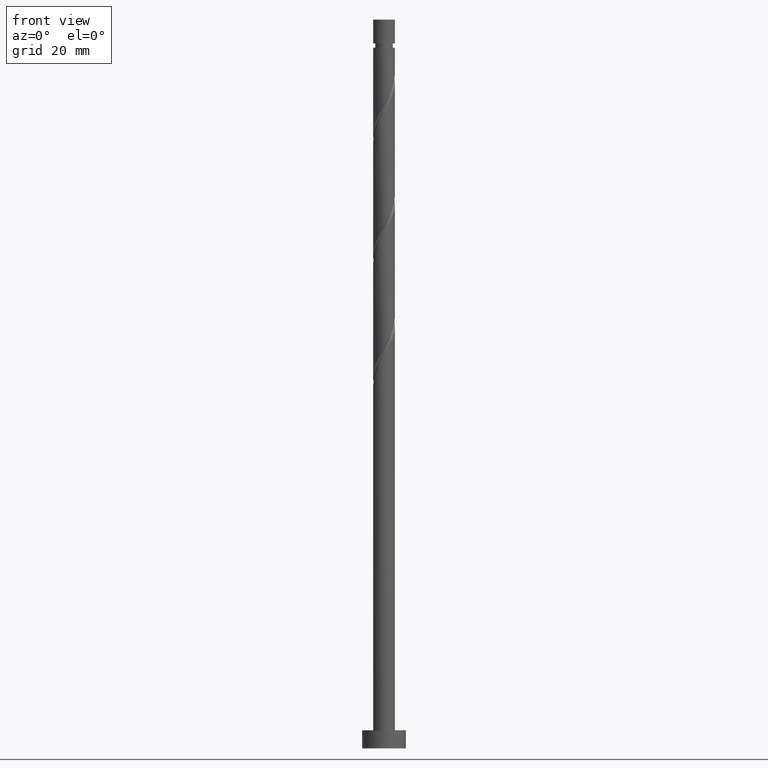
[diagram: clean part render]
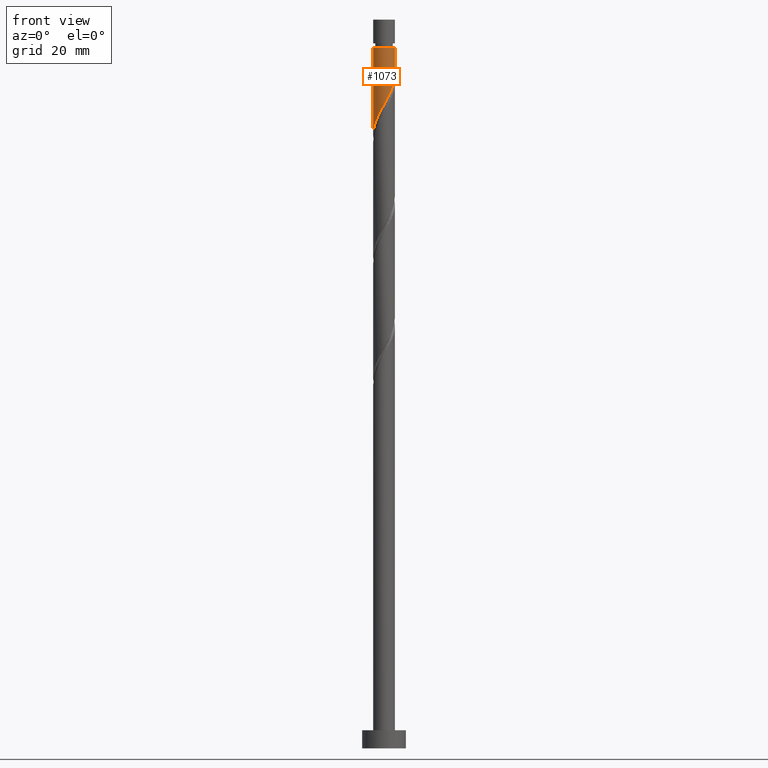
[diagram: same view with one face highlighted and labeled with its STEP entity id]
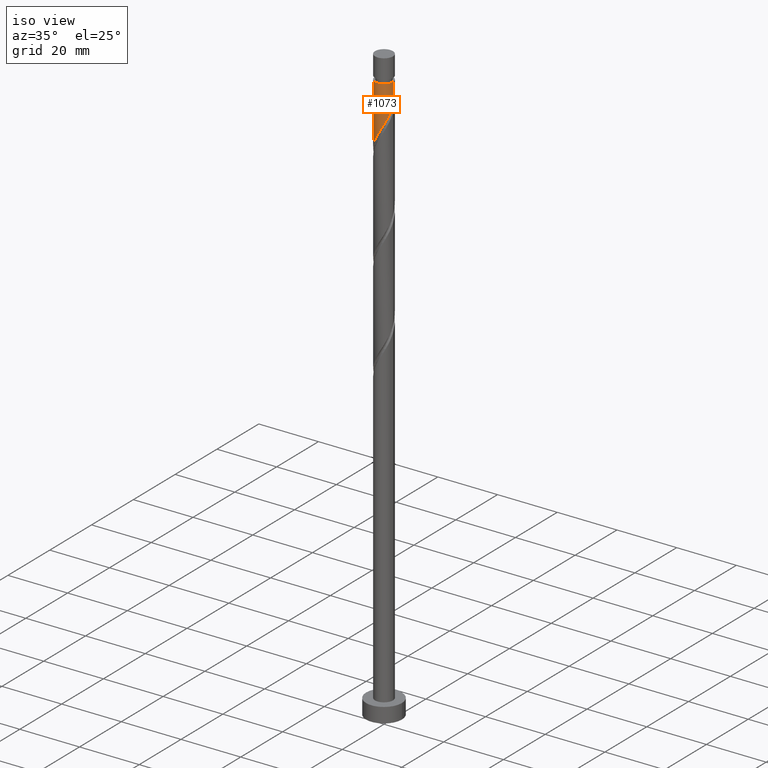
[diagram: same view with one face highlighted and labeled with its STEP entity id]
A machine part, front view. The second image highlights one B-rep face of the part: STEP entity #1073.
A second angle (iso view) of the same face is appended — the face is thin or edge-on in the first view.
In plain terms, the highlighted cylindrical surface (edge-blend (fillet) strip) has radius 3 mm, axis along (-0, -0, -1).
Its self-contained STEP definition (entity closure, byte-faithful):
#19 = CARTESIAN_POINT ( 'NONE',  ( 1.327489493864649095, -2.719147488601523222, 179.0673711523288318 ) ) ;
#127 = CARTESIAN_POINT ( 'NONE',  ( -1.691106054833251493, -2.509213369244494896, 173.5118155967732321 ) ) ;
#198 = LINE ( 'NONE', #754, #1691 ) ;
#210 = ORIENTED_EDGE ( 'NONE', *, *, #1384, .T. ) ;
#254 = CARTESIAN_POINT ( 'NONE',  ( -2.719147488601523222, -1.327489493864649095, 170.7340378189954606 ) ) ;
#278 = VERTEX_POINT ( 'NONE', #1052 ) ;
#341 = CARTESIAN_POINT ( 'NONE',  ( -3.000000000000000444, 1.315933031038566851E-15, 168.3253822519832852 ) ) ;
#378 = FACE_OUTER_BOUND ( 'NONE', #428, .T. ) ;
#428 = EDGE_LOOP ( 'NONE', ( #1619, #210, #1053, #1715 ) ) ;
#438 = CIRCLE ( 'NONE', #1605, 2.999999999999989342 ) ;
#443 = CARTESIAN_POINT ( 'NONE',  ( 2.861404451302099083, -0.9840508051709180304, 183.2340378189954322 ) ) ;
#465 = CARTESIAN_POINT ( 'NONE',  ( 3.000000000000000444, 2.093529822106810380E-15, 184.9920489186499424 ) ) ;
#474 = EDGE_CURVE ( 'NONE', #659, #1037, #900, .T. ) ;
#491 = LINE ( 'NONE', #1418, #1740 ) ;
#510 = CARTESIAN_POINT ( 'NONE',  ( -1.987010638188423162, -2.247618455994264242, 172.8173711523287466 ) ) ;
#519 = CARTESIAN_POINT ( 'NONE',  ( -2.282915221543594164, -1.986023542744032921, 172.1229267078842895 ) ) ;
#561 = CARTESIAN_POINT ( 'NONE',  ( 0.9529893618115767850, -2.844610918258235532, 178.3729267078842611 ) ) ;
#572 = CARTESIAN_POINT ( 'NONE',  ( 0.5784892297585039200, -2.970074347914949175, 177.6784822634398893 ) ) ;
#598 = CARTESIAN_POINT ( 'NONE',  ( 3.000000000000001776, -0.3015113445777606871, 184.4586225494607277 ) ) ;
#611 = DIRECTION ( 'NONE',  ( -0.000000000000000000, -0.000000000000000000, -1.000000000000000000 ) ) ;
#616 = DIRECTION ( 'NONE',  ( -0.000000000000000000, -0.000000000000000000, -1.000000000000000000 ) ) ;
#623 = EDGE_CURVE ( 'NONE', #1574, #1037, #491, .T. ) ;
#635 = CARTESIAN_POINT ( 'NONE',  ( -1.337578430002084096, -2.685308910273296767, 174.2062600412176607 ) ) ;
#659 = VERTEX_POINT ( 'NONE', #465 ) ;
#754 = CARTESIAN_POINT ( 'NONE',  ( 3.000000000000000444, 3.673940397442060361E-16, 200.0000000000000000 ) ) ;
#798 = DIRECTION ( 'NONE',  ( -0.000000000000000000, -0.000000000000000000, -1.000000000000000000 ) ) ;
#804 = CARTESIAN_POINT ( 'NONE',  ( -3.000000000000000444, 1.315933031038566851E-15, 168.3253822519832852 ) ) ;
#806 = CARTESIAN_POINT ( 'NONE',  ( -2.844610918258235088, -0.9529893618115771181, 170.0395933745510320 ) ) ;
#877 = EDGE_CURVE ( 'NONE', #278, #659, #198, .T. ) ;
#900 =( BOUNDED_CURVE ( )  B_SPLINE_CURVE ( 2, ( #1247, #598, #1116, #443, #1656, #981, #1522, #1394, #1000, #19, #561, #572, #1124, #1664, #903, #1460, #635, #127, #510, #519, #1478, #254, #806, #1334, #1015, #1426, #341 ),
 .UNSPECIFIED., .F., .T. ) 
 B_SPLINE_CURVE_WITH_KNOTS ( ( 3, 2, 2, 2, 2, 2, 2, 2, 2, 2, 2, 2, 2, 3 ),
 ( 0.3045317669814461836, 0.3125000000000000000, 0.3229166666666666852, 0.3333333333333333148, 0.3437500000000000000, 0.3541666666666666852, 0.3645833333333333148, 0.3750000000000000000, 0.3854166666666666852, 0.3958333333333333148, 0.4062500000000000000, 0.4166666666666666852, 0.4270833333333333148, 0.4295317669814463502 ),
 .UNSPECIFIED. ) 
 CURVE ( )  GEOMETRIC_REPRESENTATION_ITEM ( )  RATIONAL_B_SPLINE_CURVE ( ( 0.9062941362546451662, 0.9031415850403492485, 0.9090909090909247148, 0.9013135103398430825, 0.9090909090909247148, 0.9013135103398430825, 0.9090909090909247148, 0.9013135103398430825, 0.9090909090909247148, 0.9013135103398430825, 0.9090909090909247148, 0.9013135103398430825, 0.9090909090909247148, 0.9013135103398430825, 0.9090909090909247148, 0.9013135103398430825, 0.9090909090909247148, 0.9013135103398430825, 0.9090909090909247148, 0.9013135103398430825, 0.9090909090909247148, 0.9013135103398430825, 0.9090909090909247148, 0.9013135103398430825, 0.9090909090909247148, 0.9072628343904184378, 0.9062941362546450552 ) ) 
 REPRESENTATION_ITEM ( '' )  );
#903 = CARTESIAN_POINT ( 'NONE',  ( -0.5969924622639719569, -2.939999999999999503, 175.5951489301065465 ) ) ;
#922 = CARTESIAN_POINT ( 'NONE',  ( 0.000000000000000000, 0.000000000000000000, 200.0000000000000000 ) ) ;
#965 = CARTESIAN_POINT ( 'NONE',  ( 0.000000000000000000, 0.000000000000000000, 192.2618155967732037 ) ) ;
#978 = DIRECTION ( 'NONE',  ( -0.000000000000000000, -0.000000000000000000, -1.000000000000000000 ) ) ;
#981 = CARTESIAN_POINT ( 'NONE',  ( 2.509213369244494896, -1.691106054833252825, 181.8451489301065465 ) ) ;
#1000 = CARTESIAN_POINT ( 'NONE',  ( 1.656756518304339343, -2.501031355072559137, 179.7618155967732037 ) ) ;
#1015 = CARTESIAN_POINT ( 'NONE',  ( -2.994334948306424327, -0.1842775552007384354, 168.6507044856620894 ) ) ;
#1037 = VERTEX_POINT ( 'NONE', #804 ) ;
#1052 = CARTESIAN_POINT ( 'NONE',  ( 2.999999999999989342, 3.673940397442053459E-16, 192.2618155967732037 ) ) ;
#1053 = ORIENTED_EDGE ( 'NONE', *, *, #623, .T. ) ;
#1073 = ADVANCED_FACE ( 'NONE', ( #378 ), #1185, .T. ) ;
#1116 = CARTESIAN_POINT ( 'NONE',  ( 2.939999999999999503, -0.5969924622639720679, 183.9284822634398893 ) ) ;
#1124 = CARTESIAN_POINT ( 'NONE',  ( 0.1842775552007376028, -2.994334948306424327, 176.9840378189953753 ) ) ;
#1185 = CYLINDRICAL_SURFACE ( 'NONE', #1410, 3.000000000000000444 ) ;
#1198 = DIRECTION ( 'NONE',  ( -1.000000000000000000, 0.000000000000000000, 0.000000000000000000 ) ) ;
#1212 = DIRECTION ( 'NONE',  ( -1.000000000000000000, 0.000000000000000000, 0.000000000000000000 ) ) ;
#1247 = CARTESIAN_POINT ( 'NONE',  ( 3.000000000000000444, 2.093529822106810380E-15, 184.9920489186499424 ) ) ;
#1334 = CARTESIAN_POINT ( 'NONE',  ( -2.970074347914948731, -0.5784892297585046972, 169.3451489301066033 ) ) ;
#1384 = EDGE_CURVE ( 'NONE', #278, #1574, #438, .T. ) ;
#1394 = CARTESIAN_POINT ( 'NONE',  ( 1.986023542744032477, -2.282915221543594164, 180.4562600412176891 ) ) ;
#1410 = AXIS2_PLACEMENT_3D ( 'NONE', #922, #798, #1198 ) ;
#1418 = CARTESIAN_POINT ( 'NONE',  ( -3.000000000000000444, 0.000000000000000000, 200.0000000000000000 ) ) ;
#1426 = CARTESIAN_POINT ( 'NONE',  ( -3.000000000000000444, -0.09222585497301753754, 168.4885459400114485 ) ) ;
#1429 = CARTESIAN_POINT ( 'NONE',  ( -2.999999999999989342, 0.000000000000000000, 192.2618155967732037 ) ) ;
#1460 = CARTESIAN_POINT ( 'NONE',  ( -0.9840508051709166981, -2.861404451302099083, 174.9007044856620894 ) ) ;
#1478 = CARTESIAN_POINT ( 'NONE',  ( -2.501031355072558249, -1.656756518304340675, 171.4284822634398040 ) ) ;
#1522 = CARTESIAN_POINT ( 'NONE',  ( 2.247618455994264242, -1.987010638188423162, 181.1507044856621462 ) ) ;
#1574 = VERTEX_POINT ( 'NONE', #1429 ) ;
#1605 = AXIS2_PLACEMENT_3D ( 'NONE', #965, #978, #1212 ) ;
#1619 = ORIENTED_EDGE ( 'NONE', *, *, #877, .F. ) ;
#1656 = CARTESIAN_POINT ( 'NONE',  ( 2.685308910273295879, -1.337578430002085206, 182.5395933745509751 ) ) ;
#1664 = CARTESIAN_POINT ( 'NONE',  ( -0.2099341193570287700, -3.018595548697902586, 176.2895933745510320 ) ) ;
#1691 = VECTOR ( 'NONE', #616, 1000.000000000000000 ) ;
#1715 = ORIENTED_EDGE ( 'NONE', *, *, #474, .F. ) ;
#1740 = VECTOR ( 'NONE', #611, 1000.000000000000000 ) ;